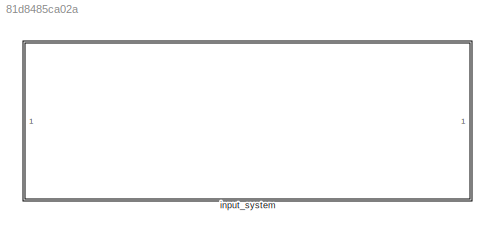
MODEL slx_81d8485ca02a
KIND library
CONFIG AbsTol = auto
CONFIG EnableMultiTasking = off
CONFIG FixedStep = auto
CONFIG MaxStep = auto
CONFIG MinStep = auto
CONFIG RelTol = 1e-3
CONFIG SampleTimeConstraint = Unconstrained
CONFIG SolverName = VariableStepAuto
CONFIG StartTime = 0.0
CONFIG StopTime = 10.0
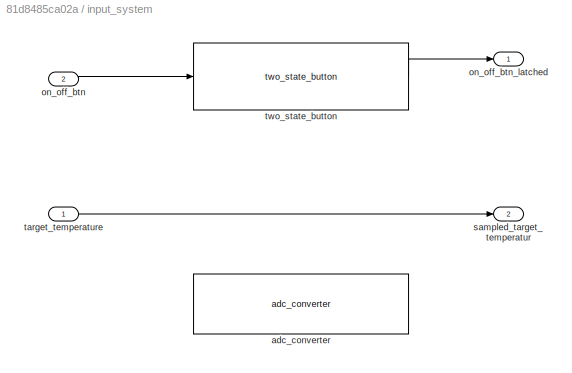
BLOCK [SubSystem] input_system
BLOCK [Reference] input_system/adc_converter  REF=adc_converter/adc_converter  (lib defined in slx_65d687cf8beb)
  Commented = on
  SourceBlock = adc_converter/adc_converter
  SourceType = SubSystem
BLOCK [Inport] input_system/on_off_btn
  Port = 2
BLOCK [Outport] input_system/on_off_btn_latched
BLOCK [Outport] input_system/sampled_target_temperatur
  OutDataTypeStr = uint16
  Port = 2
BLOCK [Inport] input_system/target_temperature
  OutDataTypeStr = uint16
BLOCK [Reference] input_system/two_state_button  REF=two_state_button/two_state_button  (lib defined in slx_4c84b1c643f1)
  SourceBlock = two_state_button/two_state_button
  SourceType = SubSystem
LINE input_system/on_off_btn:1 -> input_system/two_state_button:1
LINE input_system/target_temperature:1 -> input_system/sampled_target_temperatur:1
LINE input_system/two_state_button:1 -> input_system/on_off_btn_latched:1
